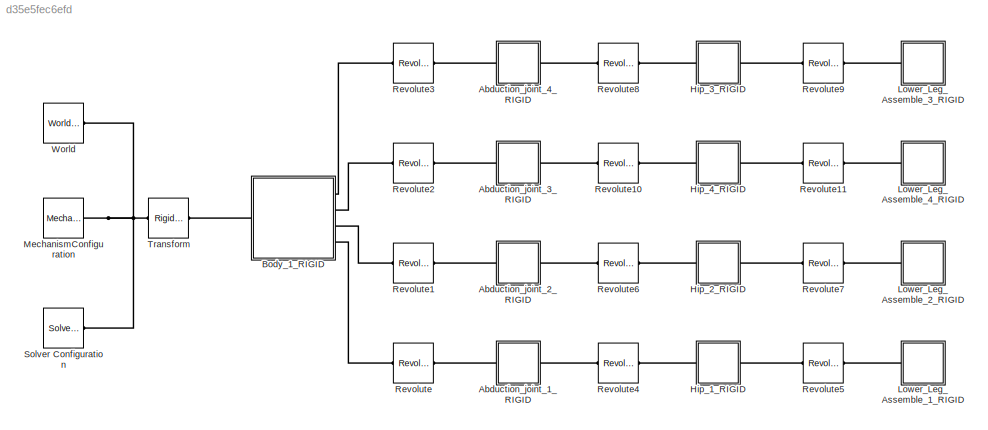
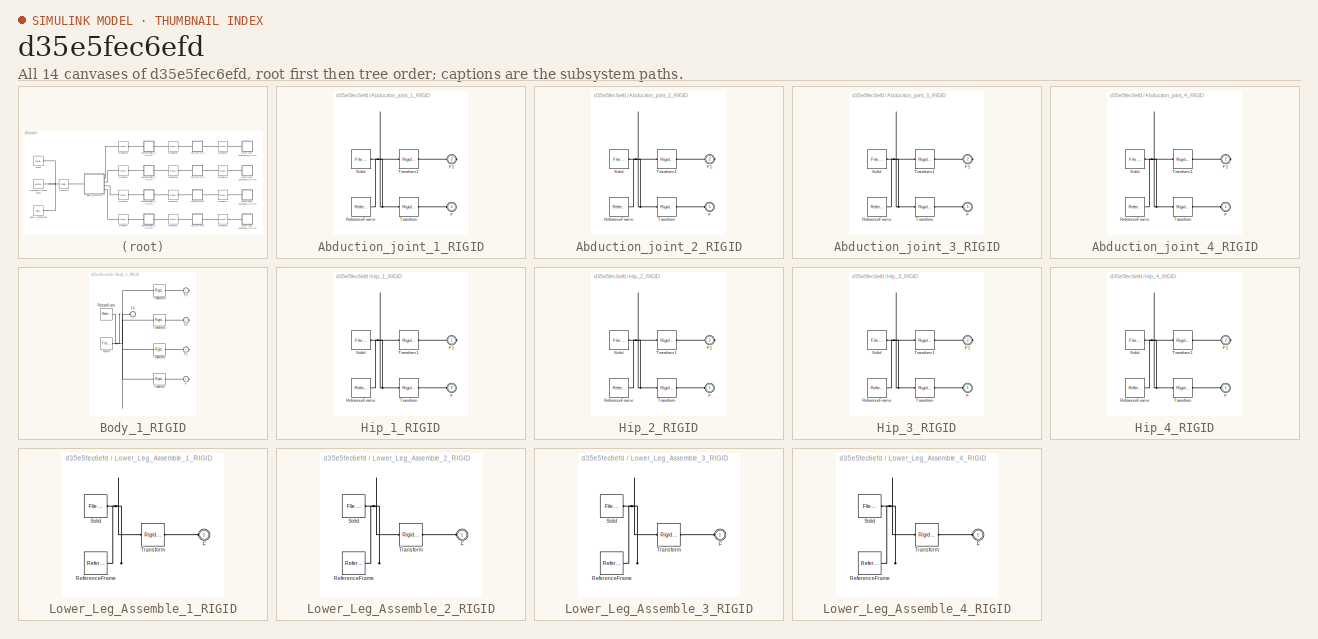
[diagram: thumbnail index - all 14 canvases of the model, root first then tree order]
MODEL slx_d35e5fec6efd
KIND model
CONFIG AbsTol = auto
CONFIG EnableMultiTasking = off
CONFIG FixedStep = auto
CONFIG InitFcn = preFunction.miniCheetahDataFile
CONFIG MaxStep = auto
CONFIG MinStep = auto
CONFIG RelTol = 1e-3
CONFIG SampleTimeConstraint = Unconstrained
CONFIG Solver = VariableStepAuto
CONFIG SolverName = VariableStepAuto
CONFIG StartTime = 0.0
CONFIG StopTime = 10.0
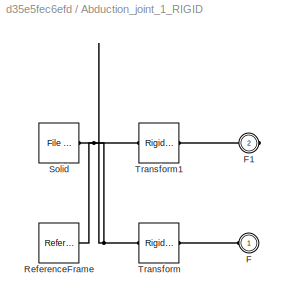
BLOCK [SubSystem] Abduction_joint_1_RIGID
  Ports = [0, 0, 0, 0, 0, 1, 1]
  RequestExecContextInheritance = off
BLOCK [PMIOPort] Abduction_joint_1_RIGID/F
  Side = Left
BLOCK [PMIOPort] Abduction_joint_1_RIGID/F1
  Port = 2
  Side = Right
BLOCK [Reference] Abduction_joint_1_RIGID/ReferenceFrame  REF=sm_lib/Frames and
Transforms/Reference
Frame
  Ports = [0, 0, 0, 0, 0, 0, 1]
  SourceBlock = sm_lib/Frames and\nTransforms/Reference\nFrame
  SourceProductBaseCode = MS
  SourceProductName = Simscape Multibody
  SourceType = Reference\nFrame
BLOCK [Reference] Abduction_joint_1_RIGID/Solid  REF=sm_lib/Body Elements/File Solid
  Ports = [0, 0, 0, 0, 0, 0, 1]
  SourceBlock = sm_lib/Body Elements/File Solid
  SourceProductBaseCode = MS
  SourceProductName = Simscape Multibody
  SourceType = File Solid
BLOCK [Reference] Abduction_joint_1_RIGID/Transform  REF=sm_lib/Frames and
Transforms/Rigid
Transform
  Ports = [0, 0, 0, 0, 0, 1, 1]
  SourceBlock = sm_lib/Frames and\nTransforms/Rigid\nTransform
  SourceProductBaseCode = MS
  SourceProductName = Simscape Multibody
  SourceType = Rigid\nTransform
BLOCK [Reference] Abduction_joint_1_RIGID/Transform1  REF=sm_lib/Frames and
Transforms/Rigid
Transform
  Ports = [0, 0, 0, 0, 0, 1, 1]
  SourceBlock = sm_lib/Frames and\nTransforms/Rigid\nTransform
  SourceProductBaseCode = MS
  SourceProductName = Simscape Multibody
  SourceType = Rigid\nTransform
BLOCK [SubSystem] Abduction_joint_2_RIGID
  Ports = [0, 0, 0, 0, 0, 1, 1]
  RequestExecContextInheritance = off
BLOCK [PMIOPort] Abduction_joint_2_RIGID/F
  Side = Left
BLOCK [PMIOPort] Abduction_joint_2_RIGID/F1
  Port = 2
  Side = Right
BLOCK [Reference] Abduction_joint_2_RIGID/ReferenceFrame  REF=sm_lib/Frames and
Transforms/Reference
Frame
  Ports = [0, 0, 0, 0, 0, 0, 1]
  SourceBlock = sm_lib/Frames and\nTransforms/Reference\nFrame
  SourceProductBaseCode = MS
  SourceProductName = Simscape Multibody
  SourceType = Reference\nFrame
BLOCK [Reference] Abduction_joint_2_RIGID/Solid  REF=sm_lib/Body Elements/File Solid
  Ports = [0, 0, 0, 0, 0, 0, 1]
  SourceBlock = sm_lib/Body Elements/File Solid
  SourceProductBaseCode = MS
  SourceProductName = Simscape Multibody
  SourceType = File Solid
BLOCK [Reference] Abduction_joint_2_RIGID/Transform  REF=sm_lib/Frames and
Transforms/Rigid
Transform
  Ports = [0, 0, 0, 0, 0, 1, 1]
  SourceBlock = sm_lib/Frames and\nTransforms/Rigid\nTransform
  SourceProductBaseCode = MS
  SourceProductName = Simscape Multibody
  SourceType = Rigid\nTransform
BLOCK [Reference] Abduction_joint_2_RIGID/Transform1  REF=sm_lib/Frames and
Transforms/Rigid
Transform
  Ports = [0, 0, 0, 0, 0, 1, 1]
  SourceBlock = sm_lib/Frames and\nTransforms/Rigid\nTransform
  SourceProductBaseCode = MS
  SourceProductName = Simscape Multibody
  SourceType = Rigid\nTransform
BLOCK [SubSystem] Abduction_joint_3_RIGID
  Ports = [0, 0, 0, 0, 0, 1, 1]
  RequestExecContextInheritance = off
BLOCK [PMIOPort] Abduction_joint_3_RIGID/F
  Side = Left
BLOCK [PMIOPort] Abduction_joint_3_RIGID/F1
  Port = 2
  Side = Right
BLOCK [Reference] Abduction_joint_3_RIGID/ReferenceFrame  REF=sm_lib/Frames and
Transforms/Reference
Frame
  Ports = [0, 0, 0, 0, 0, 0, 1]
  SourceBlock = sm_lib/Frames and\nTransforms/Reference\nFrame
  SourceProductBaseCode = MS
  SourceProductName = Simscape Multibody
  SourceType = Reference\nFrame
BLOCK [Reference] Abduction_joint_3_RIGID/Solid  REF=sm_lib/Body Elements/File Solid
  Ports = [0, 0, 0, 0, 0, 0, 1]
  SourceBlock = sm_lib/Body Elements/File Solid
  SourceProductBaseCode = MS
  SourceProductName = Simscape Multibody
  SourceType = File Solid
BLOCK [Reference] Abduction_joint_3_RIGID/Transform  REF=sm_lib/Frames and
Transforms/Rigid
Transform
  Ports = [0, 0, 0, 0, 0, 1, 1]
  SourceBlock = sm_lib/Frames and\nTransforms/Rigid\nTransform
  SourceProductBaseCode = MS
  SourceProductName = Simscape Multibody
  SourceType = Rigid\nTransform
BLOCK [Reference] Abduction_joint_3_RIGID/Transform1  REF=sm_lib/Frames and
Transforms/Rigid
Transform
  Ports = [0, 0, 0, 0, 0, 1, 1]
  SourceBlock = sm_lib/Frames and\nTransforms/Rigid\nTransform
  SourceProductBaseCode = MS
  SourceProductName = Simscape Multibody
  SourceType = Rigid\nTransform
BLOCK [SubSystem] Abduction_joint_4_RIGID
  Ports = [0, 0, 0, 0, 0, 1, 1]
  RequestExecContextInheritance = off
BLOCK [PMIOPort] Abduction_joint_4_RIGID/F
  Side = Left
BLOCK [PMIOPort] Abduction_joint_4_RIGID/F1
  Port = 2
  Side = Right
BLOCK [Reference] Abduction_joint_4_RIGID/ReferenceFrame  REF=sm_lib/Frames and
Transforms/Reference
Frame
  Ports = [0, 0, 0, 0, 0, 0, 1]
  SourceBlock = sm_lib/Frames and\nTransforms/Reference\nFrame
  SourceProductBaseCode = MS
  SourceProductName = Simscape Multibody
  SourceType = Reference\nFrame
BLOCK [Reference] Abduction_joint_4_RIGID/Solid  REF=sm_lib/Body Elements/File Solid
  Ports = [0, 0, 0, 0, 0, 0, 1]
  SourceBlock = sm_lib/Body Elements/File Solid
  SourceProductBaseCode = MS
  SourceProductName = Simscape Multibody
  SourceType = File Solid
BLOCK [Reference] Abduction_joint_4_RIGID/Transform  REF=sm_lib/Frames and
Transforms/Rigid
Transform
  Ports = [0, 0, 0, 0, 0, 1, 1]
  SourceBlock = sm_lib/Frames and\nTransforms/Rigid\nTransform
  SourceProductBaseCode = MS
  SourceProductName = Simscape Multibody
  SourceType = Rigid\nTransform
BLOCK [Reference] Abduction_joint_4_RIGID/Transform1  REF=sm_lib/Frames and
Transforms/Rigid
Transform
  Ports = [0, 0, 0, 0, 0, 1, 1]
  SourceBlock = sm_lib/Frames and\nTransforms/Rigid\nTransform
  SourceProductBaseCode = MS
  SourceProductName = Simscape Multibody
  SourceType = Rigid\nTransform
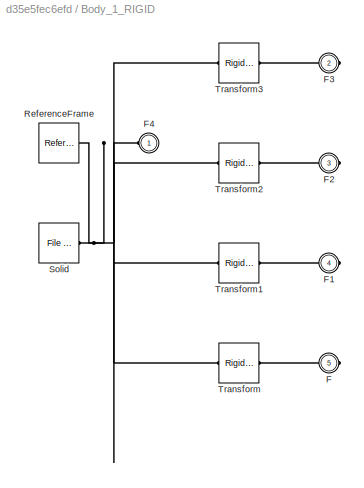
BLOCK [SubSystem] Body_1_RIGID
  Ports = [0, 0, 0, 0, 0, 1, 4]
  RequestExecContextInheritance = off
BLOCK [PMIOPort] Body_1_RIGID/F
  Port = 5
  Side = Right
BLOCK [PMIOPort] Body_1_RIGID/F1
  Port = 4
  Side = Right
BLOCK [PMIOPort] Body_1_RIGID/F2
  Port = 3
  Side = Right
BLOCK [PMIOPort] Body_1_RIGID/F3
  Port = 2
  Side = Right
BLOCK [PMIOPort] Body_1_RIGID/F4
  Side = Left
BLOCK [Reference] Body_1_RIGID/ReferenceFrame  REF=sm_lib/Frames and
Transforms/Reference
Frame
  Ports = [0, 0, 0, 0, 0, 0, 1]
  SourceBlock = sm_lib/Frames and\nTransforms/Reference\nFrame
  SourceProductBaseCode = MS
  SourceProductName = Simscape Multibody
  SourceType = Reference\nFrame
BLOCK [Reference] Body_1_RIGID/Solid  REF=sm_lib/Body Elements/File Solid
  Ports = [0, 0, 0, 0, 0, 0, 1]
  SourceBlock = sm_lib/Body Elements/File Solid
  SourceProductBaseCode = MS
  SourceProductName = Simscape Multibody
  SourceType = File Solid
BLOCK [Reference] Body_1_RIGID/Transform  REF=sm_lib/Frames and
Transforms/Rigid
Transform
  Ports = [0, 0, 0, 0, 0, 1, 1]
  SourceBlock = sm_lib/Frames and\nTransforms/Rigid\nTransform
  SourceProductBaseCode = MS
  SourceProductName = Simscape Multibody
  SourceType = Rigid\nTransform
BLOCK [Reference] Body_1_RIGID/Transform1  REF=sm_lib/Frames and
Transforms/Rigid
Transform
  Ports = [0, 0, 0, 0, 0, 1, 1]
  SourceBlock = sm_lib/Frames and\nTransforms/Rigid\nTransform
  SourceProductBaseCode = MS
  SourceProductName = Simscape Multibody
  SourceType = Rigid\nTransform
BLOCK [Reference] Body_1_RIGID/Transform2  REF=sm_lib/Frames and
Transforms/Rigid
Transform
  Ports = [0, 0, 0, 0, 0, 1, 1]
  SourceBlock = sm_lib/Frames and\nTransforms/Rigid\nTransform
  SourceProductBaseCode = MS
  SourceProductName = Simscape Multibody
  SourceType = Rigid\nTransform
BLOCK [Reference] Body_1_RIGID/Transform3  REF=sm_lib/Frames and
Transforms/Rigid
Transform
  Ports = [0, 0, 0, 0, 0, 1, 1]
  SourceBlock = sm_lib/Frames and\nTransforms/Rigid\nTransform
  SourceProductBaseCode = MS
  SourceProductName = Simscape Multibody
  SourceType = Rigid\nTransform
BLOCK [SubSystem] Hip_1_RIGID
  Ports = [0, 0, 0, 0, 0, 1, 1]
  RequestExecContextInheritance = off
BLOCK [PMIOPort] Hip_1_RIGID/F
  Port = 2
  Side = Left
BLOCK [PMIOPort] Hip_1_RIGID/F1
  Side = Right
BLOCK [Reference] Hip_1_RIGID/ReferenceFrame  REF=sm_lib/Frames and
Transforms/Reference
Frame
  Ports = [0, 0, 0, 0, 0, 0, 1]
  SourceBlock = sm_lib/Frames and\nTransforms/Reference\nFrame
  SourceProductBaseCode = MS
  SourceProductName = Simscape Multibody
  SourceType = Reference\nFrame
BLOCK [Reference] Hip_1_RIGID/Solid  REF=sm_lib/Body Elements/File Solid
  Ports = [0, 0, 0, 0, 0, 0, 1]
  SourceBlock = sm_lib/Body Elements/File Solid
  SourceProductBaseCode = MS
  SourceProductName = Simscape Multibody
  SourceType = File Solid
BLOCK [Reference] Hip_1_RIGID/Transform  REF=sm_lib/Frames and
Transforms/Rigid
Transform
  Ports = [0, 0, 0, 0, 0, 1, 1]
  SourceBlock = sm_lib/Frames and\nTransforms/Rigid\nTransform
  SourceProductBaseCode = MS
  SourceProductName = Simscape Multibody
  SourceType = Rigid\nTransform
BLOCK [Reference] Hip_1_RIGID/Transform1  REF=sm_lib/Frames and
Transforms/Rigid
Transform
  Ports = [0, 0, 0, 0, 0, 1, 1]
  SourceBlock = sm_lib/Frames and\nTransforms/Rigid\nTransform
  SourceProductBaseCode = MS
  SourceProductName = Simscape Multibody
  SourceType = Rigid\nTransform
BLOCK [SubSystem] Hip_2_RIGID
  Ports = [0, 0, 0, 0, 0, 1, 1]
  RequestExecContextInheritance = off
BLOCK [PMIOPort] Hip_2_RIGID/F
  Side = Left
BLOCK [PMIOPort] Hip_2_RIGID/F1
  Port = 2
  Side = Right
BLOCK [Reference] Hip_2_RIGID/ReferenceFrame  REF=sm_lib/Frames and
Transforms/Reference
Frame
  Ports = [0, 0, 0, 0, 0, 0, 1]
  SourceBlock = sm_lib/Frames and\nTransforms/Reference\nFrame
  SourceProductBaseCode = MS
  SourceProductName = Simscape Multibody
  SourceType = Reference\nFrame
BLOCK [Reference] Hip_2_RIGID/Solid  REF=sm_lib/Body Elements/File Solid
  Ports = [0, 0, 0, 0, 0, 0, 1]
  SourceBlock = sm_lib/Body Elements/File Solid
  SourceProductBaseCode = MS
  SourceProductName = Simscape Multibody
  SourceType = File Solid
BLOCK [Reference] Hip_2_RIGID/Transform  REF=sm_lib/Frames and
Transforms/Rigid
Transform
  Ports = [0, 0, 0, 0, 0, 1, 1]
  SourceBlock = sm_lib/Frames and\nTransforms/Rigid\nTransform
  SourceProductBaseCode = MS
  SourceProductName = Simscape Multibody
  SourceType = Rigid\nTransform
BLOCK [Reference] Hip_2_RIGID/Transform1  REF=sm_lib/Frames and
Transforms/Rigid
Transform
  Ports = [0, 0, 0, 0, 0, 1, 1]
  SourceBlock = sm_lib/Frames and\nTransforms/Rigid\nTransform
  SourceProductBaseCode = MS
  SourceProductName = Simscape Multibody
  SourceType = Rigid\nTransform
BLOCK [SubSystem] Hip_3_RIGID
  Ports = [0, 0, 0, 0, 0, 1, 1]
  RequestExecContextInheritance = off
BLOCK [PMIOPort] Hip_3_RIGID/F
  Side = Left
BLOCK [PMIOPort] Hip_3_RIGID/F1
  Port = 2
  Side = Right
BLOCK [Reference] Hip_3_RIGID/ReferenceFrame  REF=sm_lib/Frames and
Transforms/Reference
Frame
  Ports = [0, 0, 0, 0, 0, 0, 1]
  SourceBlock = sm_lib/Frames and\nTransforms/Reference\nFrame
  SourceProductBaseCode = MS
  SourceProductName = Simscape Multibody
  SourceType = Reference\nFrame
BLOCK [Reference] Hip_3_RIGID/Solid  REF=sm_lib/Body Elements/File Solid
  Ports = [0, 0, 0, 0, 0, 0, 1]
  SourceBlock = sm_lib/Body Elements/File Solid
  SourceProductBaseCode = MS
  SourceProductName = Simscape Multibody
  SourceType = File Solid
BLOCK [Reference] Hip_3_RIGID/Transform  REF=sm_lib/Frames and
Transforms/Rigid
Transform
  Ports = [0, 0, 0, 0, 0, 1, 1]
  SourceBlock = sm_lib/Frames and\nTransforms/Rigid\nTransform
  SourceProductBaseCode = MS
  SourceProductName = Simscape Multibody
  SourceType = Rigid\nTransform
BLOCK [Reference] Hip_3_RIGID/Transform1  REF=sm_lib/Frames and
Transforms/Rigid
Transform
  Ports = [0, 0, 0, 0, 0, 1, 1]
  SourceBlock = sm_lib/Frames and\nTransforms/Rigid\nTransform
  SourceProductBaseCode = MS
  SourceProductName = Simscape Multibody
  SourceType = Rigid\nTransform
BLOCK [SubSystem] Hip_4_RIGID
  Ports = [0, 0, 0, 0, 0, 1, 1]
  RequestExecContextInheritance = off
BLOCK [PMIOPort] Hip_4_RIGID/F
  Side = Left
BLOCK [PMIOPort] Hip_4_RIGID/F1
  Port = 2
  Side = Right
BLOCK [Reference] Hip_4_RIGID/ReferenceFrame  REF=sm_lib/Frames and
Transforms/Reference
Frame
  Ports = [0, 0, 0, 0, 0, 0, 1]
  SourceBlock = sm_lib/Frames and\nTransforms/Reference\nFrame
  SourceProductBaseCode = MS
  SourceProductName = Simscape Multibody
  SourceType = Reference\nFrame
BLOCK [Reference] Hip_4_RIGID/Solid  REF=sm_lib/Body Elements/File Solid
  Ports = [0, 0, 0, 0, 0, 0, 1]
  SourceBlock = sm_lib/Body Elements/File Solid
  SourceProductBaseCode = MS
  SourceProductName = Simscape Multibody
  SourceType = File Solid
BLOCK [Reference] Hip_4_RIGID/Transform  REF=sm_lib/Frames and
Transforms/Rigid
Transform
  Ports = [0, 0, 0, 0, 0, 1, 1]
  SourceBlock = sm_lib/Frames and\nTransforms/Rigid\nTransform
  SourceProductBaseCode = MS
  SourceProductName = Simscape Multibody
  SourceType = Rigid\nTransform
BLOCK [Reference] Hip_4_RIGID/Transform1  REF=sm_lib/Frames and
Transforms/Rigid
Transform
  Ports = [0, 0, 0, 0, 0, 1, 1]
  SourceBlock = sm_lib/Frames and\nTransforms/Rigid\nTransform
  SourceProductBaseCode = MS
  SourceProductName = Simscape Multibody
  SourceType = Rigid\nTransform
BLOCK [SubSystem] Lower_Leg_Assemble_1_RIGID
  Ports = [0, 0, 0, 0, 0, 1]
  RequestExecContextInheritance = off
BLOCK [PMIOPort] Lower_Leg_Assemble_1_RIGID/F
  Side = Left
BLOCK [Reference] Lower_Leg_Assemble_1_RIGID/ReferenceFrame  REF=sm_lib/Frames and
Transforms/Reference
Frame
  Ports = [0, 0, 0, 0, 0, 0, 1]
  SourceBlock = sm_lib/Frames and\nTransforms/Reference\nFrame
  SourceProductBaseCode = MS
  SourceProductName = Simscape Multibody
  SourceType = Reference\nFrame
BLOCK [Reference] Lower_Leg_Assemble_1_RIGID/Solid  REF=sm_lib/Body Elements/File Solid
  Ports = [0, 0, 0, 0, 0, 0, 1]
  SourceBlock = sm_lib/Body Elements/File Solid
  SourceProductBaseCode = MS
  SourceProductName = Simscape Multibody
  SourceType = File Solid
BLOCK [Reference] Lower_Leg_Assemble_1_RIGID/Transform  REF=sm_lib/Frames and
Transforms/Rigid
Transform
  Ports = [0, 0, 0, 0, 0, 1, 1]
  SourceBlock = sm_lib/Frames and\nTransforms/Rigid\nTransform
  SourceProductBaseCode = MS
  SourceProductName = Simscape Multibody
  SourceType = Rigid\nTransform
BLOCK [SubSystem] Lower_Leg_Assemble_2_RIGID
  Ports = [0, 0, 0, 0, 0, 1]
  RequestExecContextInheritance = off
BLOCK [PMIOPort] Lower_Leg_Assemble_2_RIGID/F
  Side = Left
BLOCK [Reference] Lower_Leg_Assemble_2_RIGID/ReferenceFrame  REF=sm_lib/Frames and
Transforms/Reference
Frame
  Ports = [0, 0, 0, 0, 0, 0, 1]
  SourceBlock = sm_lib/Frames and\nTransforms/Reference\nFrame
  SourceProductBaseCode = MS
  SourceProductName = Simscape Multibody
  SourceType = Reference\nFrame
BLOCK [Reference] Lower_Leg_Assemble_2_RIGID/Solid  REF=sm_lib/Body Elements/File Solid
  Ports = [0, 0, 0, 0, 0, 0, 1]
  SourceBlock = sm_lib/Body Elements/File Solid
  SourceProductBaseCode = MS
  SourceProductName = Simscape Multibody
  SourceType = File Solid
BLOCK [Reference] Lower_Leg_Assemble_2_RIGID/Transform  REF=sm_lib/Frames and
Transforms/Rigid
Transform
  Ports = [0, 0, 0, 0, 0, 1, 1]
  SourceBlock = sm_lib/Frames and\nTransforms/Rigid\nTransform
  SourceProductBaseCode = MS
  SourceProductName = Simscape Multibody
  SourceType = Rigid\nTransform
BLOCK [SubSystem] Lower_Leg_Assemble_3_RIGID
  Ports = [0, 0, 0, 0, 0, 1]
  RequestExecContextInheritance = off
BLOCK [PMIOPort] Lower_Leg_Assemble_3_RIGID/F
  Side = Left
BLOCK [Reference] Lower_Leg_Assemble_3_RIGID/ReferenceFrame  REF=sm_lib/Frames and
Transforms/Reference
Frame
  Ports = [0, 0, 0, 0, 0, 0, 1]
  SourceBlock = sm_lib/Frames and\nTransforms/Reference\nFrame
  SourceProductBaseCode = MS
  SourceProductName = Simscape Multibody
  SourceType = Reference\nFrame
BLOCK [Reference] Lower_Leg_Assemble_3_RIGID/Solid  REF=sm_lib/Body Elements/File Solid
  Ports = [0, 0, 0, 0, 0, 0, 1]
  SourceBlock = sm_lib/Body Elements/File Solid
  SourceProductBaseCode = MS
  SourceProductName = Simscape Multibody
  SourceType = File Solid
BLOCK [Reference] Lower_Leg_Assemble_3_RIGID/Transform  REF=sm_lib/Frames and
Transforms/Rigid
Transform
  Ports = [0, 0, 0, 0, 0, 1, 1]
  SourceBlock = sm_lib/Frames and\nTransforms/Rigid\nTransform
  SourceProductBaseCode = MS
  SourceProductName = Simscape Multibody
  SourceType = Rigid\nTransform
BLOCK [SubSystem] Lower_Leg_Assemble_4_RIGID
  Ports = [0, 0, 0, 0, 0, 1]
  RequestExecContextInheritance = off
BLOCK [PMIOPort] Lower_Leg_Assemble_4_RIGID/F
  Side = Left
BLOCK [Reference] Lower_Leg_Assemble_4_RIGID/ReferenceFrame  REF=sm_lib/Frames and
Transforms/Reference
Frame
  Ports = [0, 0, 0, 0, 0, 0, 1]
  SourceBlock = sm_lib/Frames and\nTransforms/Reference\nFrame
  SourceProductBaseCode = MS
  SourceProductName = Simscape Multibody
  SourceType = Reference\nFrame
BLOCK [Reference] Lower_Leg_Assemble_4_RIGID/Solid  REF=sm_lib/Body Elements/File Solid
  Ports = [0, 0, 0, 0, 0, 0, 1]
  SourceBlock = sm_lib/Body Elements/File Solid
  SourceProductBaseCode = MS
  SourceProductName = Simscape Multibody
  SourceType = File Solid
BLOCK [Reference] Lower_Leg_Assemble_4_RIGID/Transform  REF=sm_lib/Frames and
Transforms/Rigid
Transform
  Ports = [0, 0, 0, 0, 0, 1, 1]
  SourceBlock = sm_lib/Frames and\nTransforms/Rigid\nTransform
  SourceProductBaseCode = MS
  SourceProductName = Simscape Multibody
  SourceType = Rigid\nTransform
BLOCK [Reference] MechanismConfiguration  REF=sm_lib/Utilities/Mechanism
Configuration
  Ports = [0, 0, 0, 0, 0, 0, 1]
  SourceBlock = sm_lib/Utilities/Mechanism\nConfiguration
  SourceProductBaseCode = MS
  SourceProductName = Simscape Multibody
  SourceType = Mechanism\nConfiguration
BLOCK [Reference] Revolute  REF=sm_lib/Joints/Revolute Joint
  Ports = [0, 0, 0, 0, 0, 1, 1]
  SourceBlock = sm_lib/Joints/Revolute Joint
  SourceProductBaseCode = MS
  SourceProductName = Simscape Multibody
  SourceType = Revolute Joint
BLOCK [Reference] Revolute1  REF=sm_lib/Joints/Revolute Joint
  Ports = [0, 0, 0, 0, 0, 1, 1]
  SourceBlock = sm_lib/Joints/Revolute Joint
  SourceProductBaseCode = MS
  SourceProductName = Simscape Multibody
  SourceType = Revolute Joint
BLOCK [Reference] Revolute10  REF=sm_lib/Joints/Revolute Joint
  Ports = [0, 0, 0, 0, 0, 1, 1]
  SourceBlock = sm_lib/Joints/Revolute Joint
  SourceProductBaseCode = MS
  SourceProductName = Simscape Multibody
  SourceType = Revolute Joint
BLOCK [Reference] Revolute11  REF=sm_lib/Joints/Revolute Joint
  Ports = [0, 0, 0, 0, 0, 1, 1]
  SourceBlock = sm_lib/Joints/Revolute Joint
  SourceProductBaseCode = MS
  SourceProductName = Simscape Multibody
  SourceType = Revolute Joint
BLOCK [Reference] Revolute2  REF=sm_lib/Joints/Revolute Joint
  Ports = [0, 0, 0, 0, 0, 1, 1]
  SourceBlock = sm_lib/Joints/Revolute Joint
  SourceProductBaseCode = MS
  SourceProductName = Simscape Multibody
  SourceType = Revolute Joint
BLOCK [Reference] Revolute3  REF=sm_lib/Joints/Revolute Joint
  Ports = [0, 0, 0, 0, 0, 1, 1]
  SourceBlock = sm_lib/Joints/Revolute Joint
  SourceProductBaseCode = MS
  SourceProductName = Simscape Multibody
  SourceType = Revolute Joint
BLOCK [Reference] Revolute4  REF=sm_lib/Joints/Revolute Joint
  Ports = [0, 0, 0, 0, 0, 1, 1]
  SourceBlock = sm_lib/Joints/Revolute Joint
  SourceProductBaseCode = MS
  SourceProductName = Simscape Multibody
  SourceType = Revolute Joint
BLOCK [Reference] Revolute5  REF=sm_lib/Joints/Revolute Joint
  Ports = [0, 0, 0, 0, 0, 1, 1]
  SourceBlock = sm_lib/Joints/Revolute Joint
  SourceProductBaseCode = MS
  SourceProductName = Simscape Multibody
  SourceType = Revolute Joint
BLOCK [Reference] Revolute6  REF=sm_lib/Joints/Revolute Joint
  Ports = [0, 0, 0, 0, 0, 1, 1]
  SourceBlock = sm_lib/Joints/Revolute Joint
  SourceProductBaseCode = MS
  SourceProductName = Simscape Multibody
  SourceType = Revolute Joint
BLOCK [Reference] Revolute7  REF=sm_lib/Joints/Revolute Joint
  Ports = [0, 0, 0, 0, 0, 1, 1]
  SourceBlock = sm_lib/Joints/Revolute Joint
  SourceProductBaseCode = MS
  SourceProductName = Simscape Multibody
  SourceType = Revolute Joint
BLOCK [Reference] Revolute8  REF=sm_lib/Joints/Revolute Joint
  Ports = [0, 0, 0, 0, 0, 1, 1]
  SourceBlock = sm_lib/Joints/Revolute Joint
  SourceProductBaseCode = MS
  SourceProductName = Simscape Multibody
  SourceType = Revolute Joint
BLOCK [Reference] Revolute9  REF=sm_lib/Joints/Revolute Joint
  Ports = [0, 0, 0, 0, 0, 1, 1]
  SourceBlock = sm_lib/Joints/Revolute Joint
  SourceProductBaseCode = MS
  SourceProductName = Simscape Multibody
  SourceType = Revolute Joint
BLOCK [Reference] Solver Configuration  REF=nesl_utility/Solver
Configuration
  Ports = [0, 0, 0, 0, 0, 0, 1]
  SourceBlock = nesl_utility/Solver\nConfiguration
  SourceProductBaseCode = SS
  SourceProductName = Simscape
  SourceType = Solver\nConfiguration
BLOCK [Reference] Transform  REF=sm_lib/Frames and
Transforms/Rigid
Transform
  Ports = [0, 0, 0, 0, 0, 1, 1]
  SourceBlock = sm_lib/Frames and\nTransforms/Rigid\nTransform
  SourceProductBaseCode = MS
  SourceProductName = Simscape Multibody
  SourceType = Rigid\nTransform
BLOCK [Reference] World  REF=sm_lib/Frames and
Transforms/World Frame
  Ports = [0, 0, 0, 0, 0, 0, 1]
  SourceBlock = sm_lib/Frames and\nTransforms/World Frame
  SourceProductBaseCode = MS
  SourceProductName = Simscape Multibody
  SourceType = World Frame
PLINE Abduction_joint_1_RIGID/F1:RConn1 -- Abduction_joint_1_RIGID/Transform1:RConn1
PLINE Abduction_joint_1_RIGID/F:RConn1 -- Abduction_joint_1_RIGID/Transform:RConn1
PNET net1: Abduction_joint_1_RIGID/ReferenceFrame:RConn1 -- Abduction_joint_1_RIGID/Solid:RConn1 -- Abduction_joint_1_RIGID/Transform1:LConn1 -- Abduction_joint_1_RIGID/Transform:LConn1
PLINE Abduction_joint_1_RIGID:LConn1 -- Revolute:RConn1
PLINE Abduction_joint_1_RIGID:RConn1 -- Revolute4:LConn1
PLINE Abduction_joint_2_RIGID/F1:RConn1 -- Abduction_joint_2_RIGID/Transform1:RConn1
PLINE Abduction_joint_2_RIGID/F:RConn1 -- Abduction_joint_2_RIGID/Transform:RConn1
PNET net2: Abduction_joint_2_RIGID/ReferenceFrame:RConn1 -- Abduction_joint_2_RIGID/Solid:RConn1 -- Abduction_joint_2_RIGID/Transform1:LConn1 -- Abduction_joint_2_RIGID/Transform:LConn1
PLINE Abduction_joint_2_RIGID:LConn1 -- Revolute1:RConn1
PLINE Abduction_joint_2_RIGID:RConn1 -- Revolute6:LConn1
PLINE Abduction_joint_3_RIGID/F1:RConn1 -- Abduction_joint_3_RIGID/Transform1:RConn1
PLINE Abduction_joint_3_RIGID/F:RConn1 -- Abduction_joint_3_RIGID/Transform:RConn1
PNET net3: Abduction_joint_3_RIGID/ReferenceFrame:RConn1 -- Abduction_joint_3_RIGID/Solid:RConn1 -- Abduction_joint_3_RIGID/Transform1:LConn1 -- Abduction_joint_3_RIGID/Transform:LConn1
PLINE Abduction_joint_3_RIGID:LConn1 -- Revolute2:RConn1
PLINE Abduction_joint_3_RIGID:RConn1 -- Revolute10:LConn1
PLINE Abduction_joint_4_RIGID/F1:RConn1 -- Abduction_joint_4_RIGID/Transform1:RConn1
PLINE Abduction_joint_4_RIGID/F:RConn1 -- Abduction_joint_4_RIGID/Transform:RConn1
PNET net4: Abduction_joint_4_RIGID/ReferenceFrame:RConn1 -- Abduction_joint_4_RIGID/Solid:RConn1 -- Abduction_joint_4_RIGID/Transform1:LConn1 -- Abduction_joint_4_RIGID/Transform:LConn1
PLINE Abduction_joint_4_RIGID:LConn1 -- Revolute3:RConn1
PLINE Abduction_joint_4_RIGID:RConn1 -- Revolute8:LConn1
PLINE Body_1_RIGID/F1:RConn1 -- Body_1_RIGID/Transform1:RConn1
PLINE Body_1_RIGID/F2:RConn1 -- Body_1_RIGID/Transform2:RConn1
PLINE Body_1_RIGID/F3:RConn1 -- Body_1_RIGID/Transform3:RConn1
PNET net5: Body_1_RIGID/F4:RConn1 -- Body_1_RIGID/ReferenceFrame:RConn1 -- Body_1_RIGID/Solid:RConn1 -- Body_1_RIGID/Transform1:LConn1 -- Body_1_RIGID/Transform2:LConn1 -- Body_1_RIGID/Transform3:LConn1 -- Body_1_RIGID/Transform:LConn1
PLINE Body_1_RIGID/F:RConn1 -- Body_1_RIGID/Transform:RConn1
PLINE Body_1_RIGID:LConn1 -- Transform:RConn1
PLINE Body_1_RIGID:RConn1 -- Revolute3:LConn1
PLINE Body_1_RIGID:RConn2 -- Revolute2:LConn1
PLINE Body_1_RIGID:RConn3 -- Revolute1:LConn1
PLINE Body_1_RIGID:RConn4 -- Revolute:LConn1
PLINE Hip_1_RIGID/F1:RConn1 -- Hip_1_RIGID/Transform1:RConn1
PLINE Hip_1_RIGID/F:RConn1 -- Hip_1_RIGID/Transform:RConn1
PNET net6: Hip_1_RIGID/ReferenceFrame:RConn1 -- Hip_1_RIGID/Solid:RConn1 -- Hip_1_RIGID/Transform1:LConn1 -- Hip_1_RIGID/Transform:LConn1
PLINE Hip_1_RIGID:LConn1 -- Revolute4:RConn1
PLINE Hip_1_RIGID:RConn1 -- Revolute5:LConn1
PLINE Hip_2_RIGID/F1:RConn1 -- Hip_2_RIGID/Transform1:RConn1
PLINE Hip_2_RIGID/F:RConn1 -- Hip_2_RIGID/Transform:RConn1
PNET net7: Hip_2_RIGID/ReferenceFrame:RConn1 -- Hip_2_RIGID/Solid:RConn1 -- Hip_2_RIGID/Transform1:LConn1 -- Hip_2_RIGID/Transform:LConn1
PLINE Hip_2_RIGID:LConn1 -- Revolute6:RConn1
PLINE Hip_2_RIGID:RConn1 -- Revolute7:LConn1
PLINE Hip_3_RIGID/F1:RConn1 -- Hip_3_RIGID/Transform1:RConn1
PLINE Hip_3_RIGID/F:RConn1 -- Hip_3_RIGID/Transform:RConn1
PNET net8: Hip_3_RIGID/ReferenceFrame:RConn1 -- Hip_3_RIGID/Solid:RConn1 -- Hip_3_RIGID/Transform1:LConn1 -- Hip_3_RIGID/Transform:LConn1
PLINE Hip_3_RIGID:LConn1 -- Revolute8:RConn1
PLINE Hip_3_RIGID:RConn1 -- Revolute9:LConn1
PLINE Hip_4_RIGID/F1:RConn1 -- Hip_4_RIGID/Transform1:RConn1
PLINE Hip_4_RIGID/F:RConn1 -- Hip_4_RIGID/Transform:RConn1
PNET net9: Hip_4_RIGID/ReferenceFrame:RConn1 -- Hip_4_RIGID/Solid:RConn1 -- Hip_4_RIGID/Transform1:LConn1 -- Hip_4_RIGID/Transform:LConn1
PLINE Hip_4_RIGID:LConn1 -- Revolute10:RConn1
PLINE Hip_4_RIGID:RConn1 -- Revolute11:LConn1
PLINE Lower_Leg_Assemble_1_RIGID/F:RConn1 -- Lower_Leg_Assemble_1_RIGID/Transform:RConn1
PNET net10: Lower_Leg_Assemble_1_RIGID/ReferenceFrame:RConn1 -- Lower_Leg_Assemble_1_RIGID/Solid:RConn1 -- Lower_Leg_Assemble_1_RIGID/Transform:LConn1
PLINE Lower_Leg_Assemble_1_RIGID:LConn1 -- Revolute5:RConn1
PLINE Lower_Leg_Assemble_2_RIGID/F:RConn1 -- Lower_Leg_Assemble_2_RIGID/Transform:RConn1
PNET net11: Lower_Leg_Assemble_2_RIGID/ReferenceFrame:RConn1 -- Lower_Leg_Assemble_2_RIGID/Solid:RConn1 -- Lower_Leg_Assemble_2_RIGID/Transform:LConn1
PLINE Lower_Leg_Assemble_2_RIGID:LConn1 -- Revolute7:RConn1
PLINE Lower_Leg_Assemble_3_RIGID/F:RConn1 -- Lower_Leg_Assemble_3_RIGID/Transform:RConn1
PNET net12: Lower_Leg_Assemble_3_RIGID/ReferenceFrame:RConn1 -- Lower_Leg_Assemble_3_RIGID/Solid:RConn1 -- Lower_Leg_Assemble_3_RIGID/Transform:LConn1
PLINE Lower_Leg_Assemble_3_RIGID:LConn1 -- Revolute9:RConn1
PLINE Lower_Leg_Assemble_4_RIGID/F:RConn1 -- Lower_Leg_Assemble_4_RIGID/Transform:RConn1
PNET net13: Lower_Leg_Assemble_4_RIGID/ReferenceFrame:RConn1 -- Lower_Leg_Assemble_4_RIGID/Solid:RConn1 -- Lower_Leg_Assemble_4_RIGID/Transform:LConn1
PLINE Lower_Leg_Assemble_4_RIGID:LConn1 -- Revolute11:RConn1
PNET net14: MechanismConfiguration:RConn1 -- Solver Configuration:RConn1 -- Transform:LConn1 -- World:RConn1
note: PNET lines group multi-terminal physical nets as a canonical sorted terminal list (undirected conserving connections); 2-terminal nets keep the pairwise PLINE form
